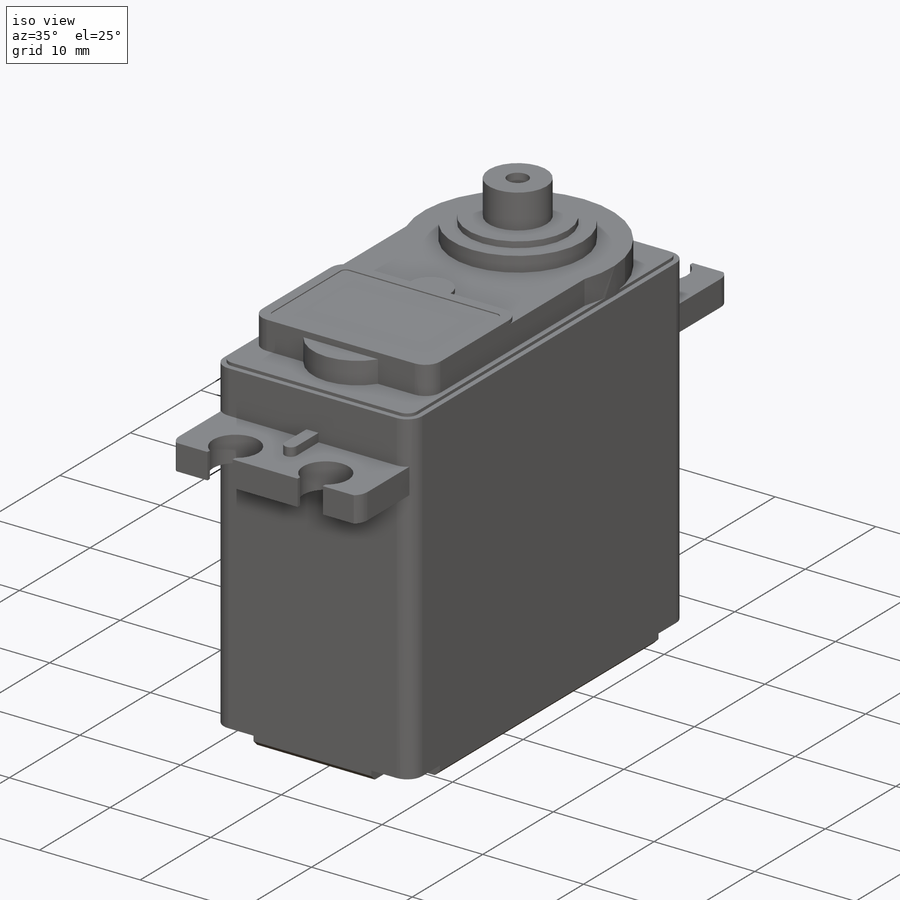
[diagram: iso view]
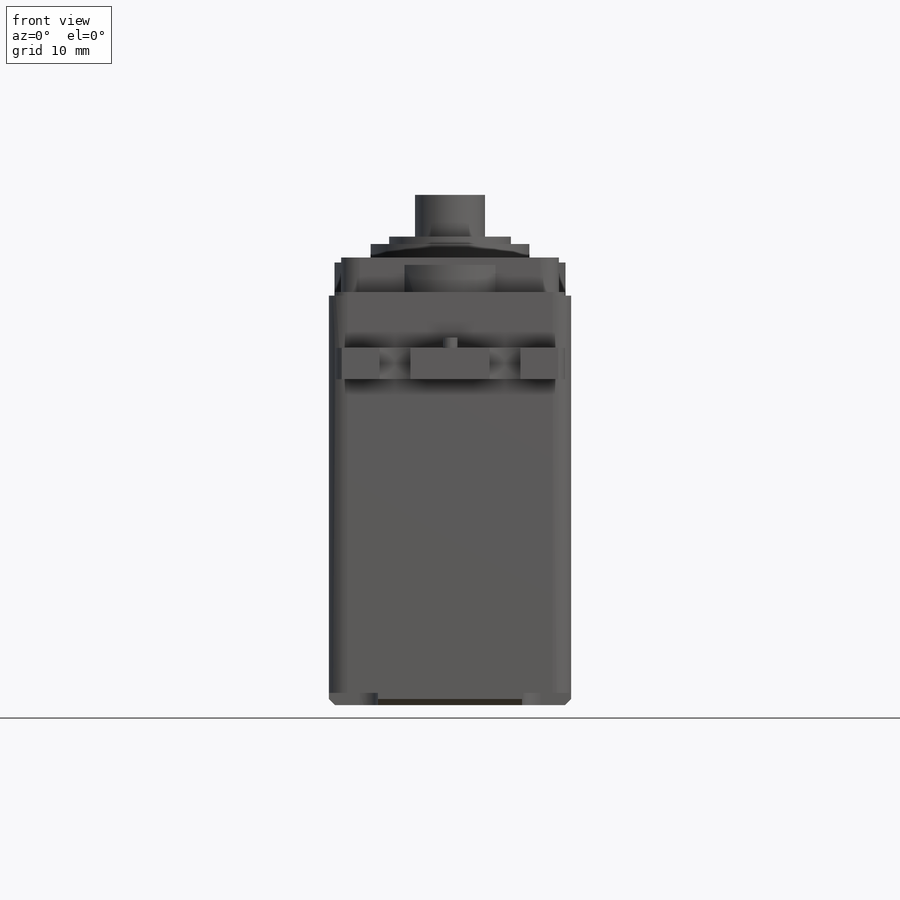
[diagram: front view]
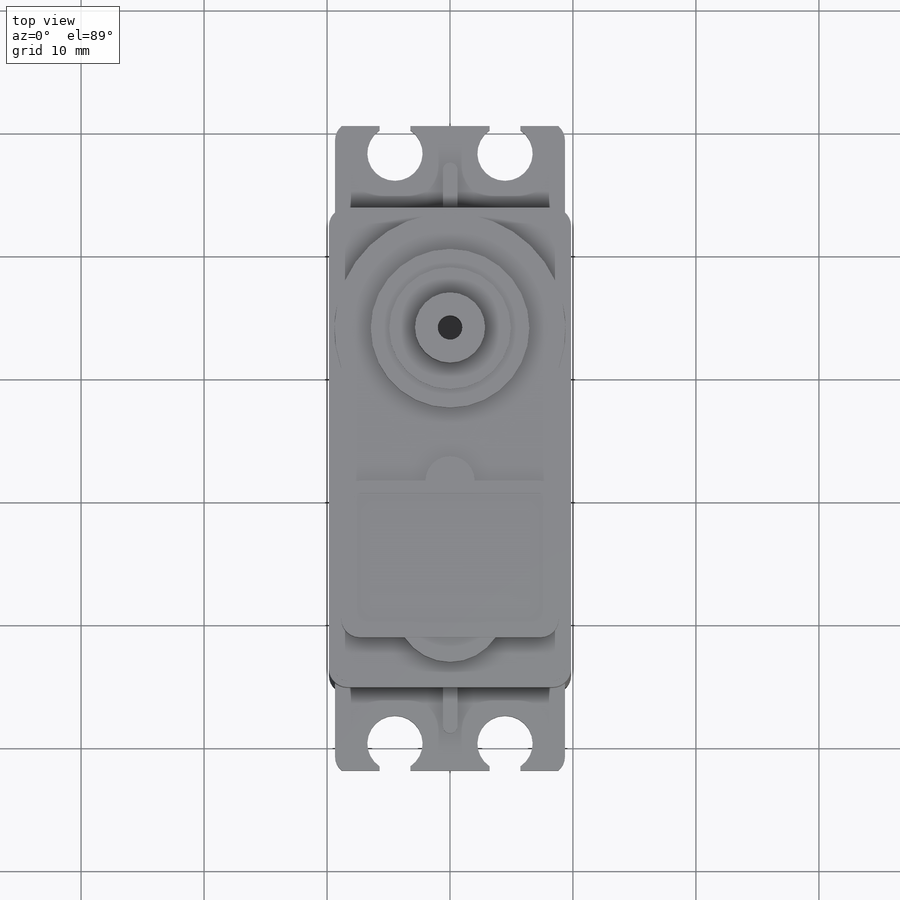
[diagram: top view]
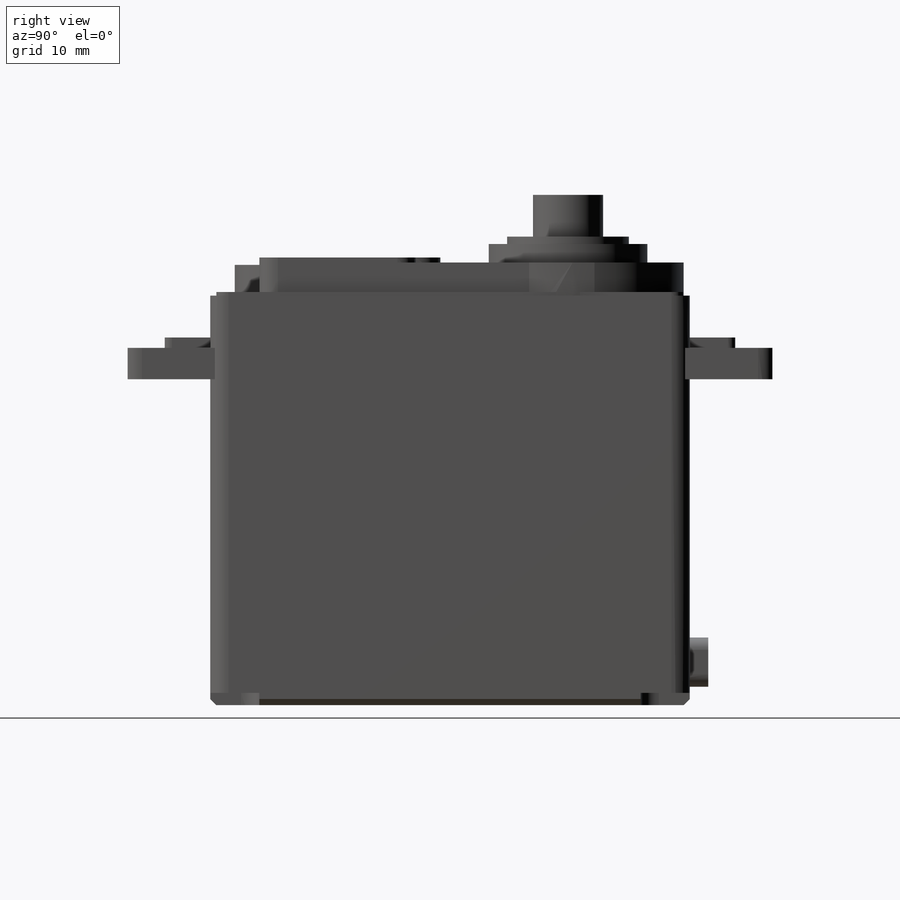
[diagram: right view]
SOLIDWORKS PART (.sldprt)
format: sldprt  version: not decoded by parser v0  size: 601,600 bytes
history: native  units: mm
features: sketch x16, extrude x12, cut_extrude x3, plane x2, mirror x2, material x1, chamfer x1 (+13 scaffold rows collapsed)
feature tree (50):
  scaffold x13  (default folders/planes/origin — collapsed)
  material  "Material <not specified>"
  sketch  "Sketch1"  dims[c1.D4=12.85mm c1.D5=1.5mm c1.D1=~120.037551mm c1.D2=~61.396256mm c2.D1=~76.351754mm c2.D2=~56.279901mm c3.D1=39.0mm c3.D2=19.7mm c3.D3=9.85mm c3.D5=28.575mm c3.D6=~27.823212mm c3.D4=28.575mm c4.D6=39.0mm c4.D7=19.7mm c4.D1=~35.977236mm c4.D2=~17.383991mm c5.D1=19.7mm c5.D2=39.0mm c5.D3=25.58mm c5.D4=9.85mm]
  extrude  "Boss-Extrude1"  Depth=33.3mm
  plane  "Plane1"  Offset=26.5mm
  sketch  "Sketch4"  dims[c1.D3=1.5mm c1.D4=4.5mm c1.D5=2.25mm c1.D1=~60.179819mm c1.D2=~42.882626mm c2.D1=53.1mm c2.D2=~42.882626mm c3.D1=~44.971744mm c3.D2=~16.464667mm c4.D1=18.7mm c4.D2=53.1mm c4.D5=2.5mm c4.D6=48.0mm c4.D7=~7.879412mm c5.D6=8.95mm c5.D7=2.125mm c5.D4=2.5mm c6.D6=~0.679171mm c6.D7=8.95mm c6.D8=48.0mm]
  extrude  "Boss-Extrude2"  Depth=2.55mm
  sketch  "Sketch5"  dims[c1.D1=18.8mm c1.D2=1.5mm c1.D5=9.4mm c1.D7=9.4mm c2.D2=~23.526206mm c2.D3=~8.534478mm c3.D2=34.0mm c3.D3=17.7mm c3.D4=~3.494023mm c4.D2=~31.900581mm c4.D3=~17.303099mm c5.D2=17.7mm c5.D3=34.5mm c6.D2=~23.707776mm c6.D3=~13.157816mm c7.D2=17.7mm c7.D3=34.5mm c7.D4=8.85mm c8.D3=25.1mm c8.D5=17.7mm c8.D6=4.0mm c9.D3=17.7mm c9.D4=25.1mm c9.D5=8.85mm c9.D7=9.9mm]
  extrude  "Boss-Extrude3"  Depth=2.7mm
  sketch  "Sketch6"  dims[c1.D1=~3.603781mm c1.D2=3.7mm c2.D1=7.4mm c3.D1=2.0mm]
  extrude  "Boss-Extrude4"  Depth=2.5mm
  sketch  "Sketch7"  dims[D1=12.9mm]
  extrude  "Boss-Extrude5"  Depth=1.5mm
  sketch  "Sketch8"  dims[D1=1.5mm]
  extrude  "Boss-Extrude6"  Depth=0.6mm
  sketch  "Sketch10"  dims[D1=5.7mm]
  extrude  "Boss-Extrude7"  Depth=3.4mm
  sketch  "Sketch11"  dims[c1.D3=0.59mm c1.D1=~2.665942mm c1.D2=~3.251034mm c2.D1=1.2mm c2.D2=3.7mm c2.D4=9.35mm c2.D5=~33.50764mm]
  extrude  "Boss-Extrude8"  Depth=0.85mm
  sketch  "Sketch12"  dims[D1=2.0mm]
  cut_extrude  "Cut-Extrude1"  Depth=5mm
  sketch  "Sketch13"  dims[c1.D2=0.5mm c1.D1=4.0mm c1.D3=1.5mm c1.D4=4.0mm c2.D1=1.0mm]
  extrude  "Boss-Extrude9"  Depth=0.4mm
  sketch  "Sketch14"  dims[D1=0.0mm]
  extrude  "Boss-Extrude10"  Depth=0.3mm
  sketch  "Sketch16"  dims[D1=0.5mm]
  extrude  "Boss-Extrude11"  Depth=0.3mm
  chamfer  "Chamfer1"  Distance=0.5mm Angle=45deg
  sketch  "Sketch17"  dims[D3=1.5mm D1=4.0mm D2=4.0mm]
  cut_extrude  "Cut-Extrude2"  Depth=1mm
  mirror  "Mirror1"
  plane  "Plane2"
  mirror  "Mirror2"
  sketch  "Sketch19"  dims[D4=1.0mm D1=7.0mm D2=4.0mm D3=1.0mm]
  extrude  "Boss-Extrude12"  Depth=1.5mm
  sketch  "Sketch20"  dims[D1=0.3mm]
  sketch  "Sketch21"
  cut_extrude  "Cut-Extrude3"  Depth=10mm
decode coverage: 31 of 34 modeling features carry decoded parameters
note: ~ marks probable driven/reference dimensions
note: suppression state not decoded; provenance and decode notes live in map.json
